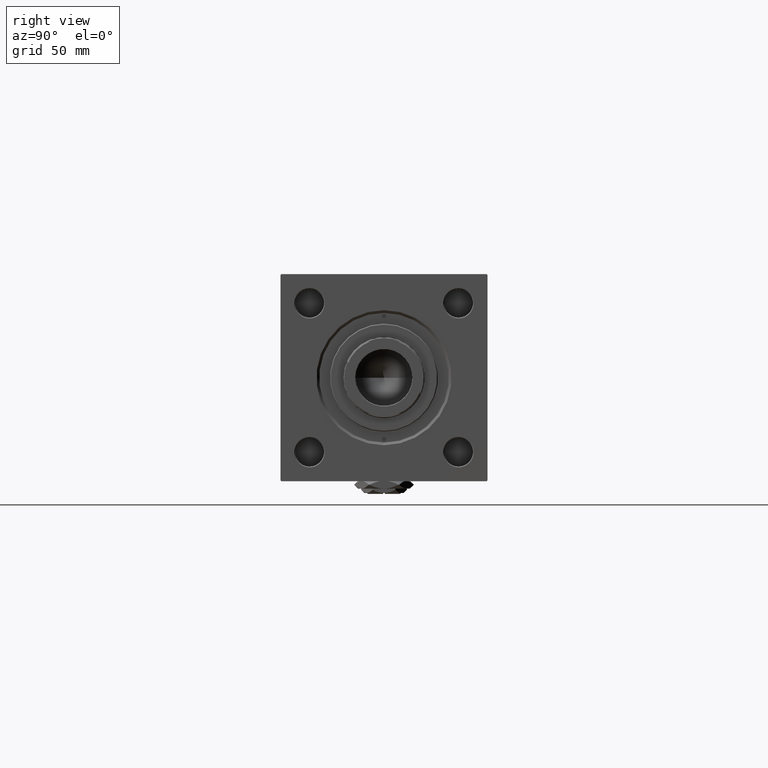
[diagram: clean part render]
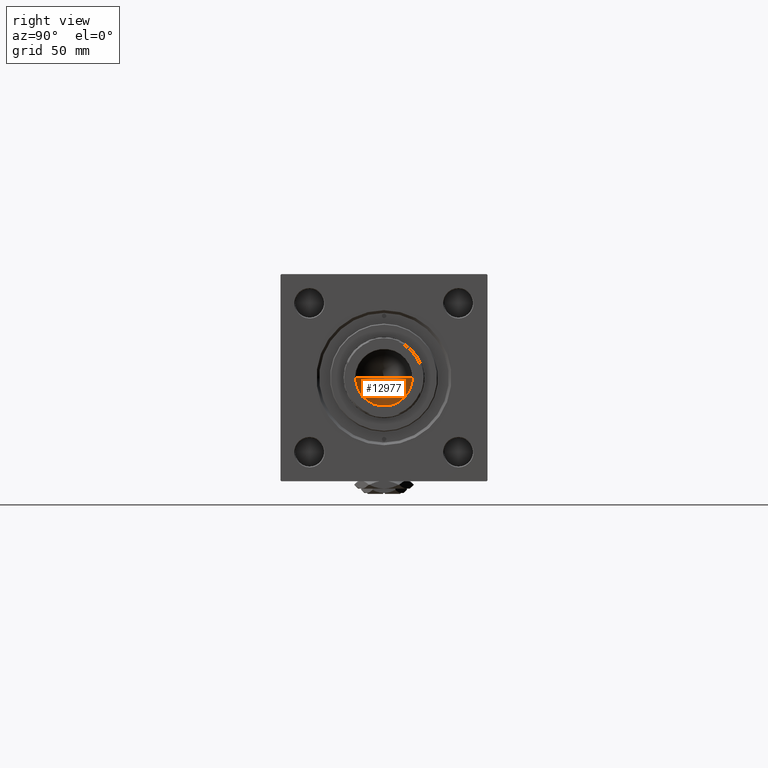
[diagram: same view with one face highlighted and labeled with its STEP entity id]
A machine part, right view. The second image highlights one B-rep face of the part: STEP entity #12977.
In plain terms, the highlighted conical surface has half-angle 59 deg.
Its self-contained STEP definition (entity closure, byte-faithful):
#4162 = CARTESIAN_POINT ( 'NONE',  ( 15.74999999999998934, 0.000000000000000000, 251.0000000000000000 ) ) ;
#4484 = CARTESIAN_POINT ( 'NONE',  ( -15.74999999999998934, 1.928818708657080161E-15, 251.0000000000000000 ) ) ;
#8616 = VERTEX_POINT ( 'NONE', #12252 ) ;
#11143 = EDGE_LOOP ( 'NONE', ( #13585, #38507, #45494 ) ) ;
#11863 = VERTEX_POINT ( 'NONE', #18242 ) ;
#12252 = CARTESIAN_POINT ( 'NONE',  ( 15.74999999999998934, 0.000000000000000000, 251.0000000000000000 ) ) ;
#12977 = ADVANCED_FACE ( 'NONE', ( #52028 ), #38042, .F. ) ;
#13585 = ORIENTED_EDGE ( 'NONE', *, *, #41399, .F. ) ;
#14576 = VECTOR ( 'NONE', #33585, 1000.000000000000000 ) ;
#18242 = CARTESIAN_POINT ( 'NONE',  ( -1.584115414415908206E-14, 0.000000000000000000, 241.5364452503158930 ) ) ;
#18614 = DIRECTION ( 'NONE',  ( 1.000000000000000000, 0.000000000000000000, 0.000000000000000000 ) ) ;
#19917 = CARTESIAN_POINT ( 'NONE',  ( 0.000000000000000000, 0.000000000000000000, 251.0000000000000000 ) ) ;
#26622 = DIRECTION ( 'NONE',  ( -0.000000000000000000, -0.000000000000000000, 1.000000000000000000 ) ) ;
#27503 = EDGE_CURVE ( 'NONE', #8616, #51253, #34939, .T. ) ;
#30218 = CARTESIAN_POINT ( 'NONE',  ( -15.74999999999998934, 1.928818708657080161E-15, 251.0000000000000000 ) ) ;
#31960 = DIRECTION ( 'NONE',  ( 1.000000000000000000, 0.000000000000000000, 0.000000000000000000 ) ) ;
#32320 = LINE ( 'NONE', #4484, #50691 ) ;
#33585 = DIRECTION ( 'NONE',  ( 0.8571673007021112234, 0.000000000000000000, 0.5150380749100560429 ) ) ;
#34939 = CIRCLE ( 'NONE', #40032, 15.74999999999998934 ) ;
#35480 = AXIS2_PLACEMENT_3D ( 'NONE', #19917, #51516, #31960 ) ;
#35846 = EDGE_CURVE ( 'NONE', #11863, #8616, #40809, .T. ) ;
#38042 = CONICAL_SURFACE ( 'NONE', #35480, 15.74999999999998934, 1.029744258676652313 ) ;
#38507 = ORIENTED_EDGE ( 'NONE', *, *, #35846, .T. ) ;
#40032 = AXIS2_PLACEMENT_3D ( 'NONE', #46166, #26622, #18614 ) ;
#40809 = LINE ( 'NONE', #4162, #14576 ) ;
#41399 = EDGE_CURVE ( 'NONE', #11863, #51253, #32320, .T. ) ;
#45494 = ORIENTED_EDGE ( 'NONE', *, *, #27503, .T. ) ;
#46166 = CARTESIAN_POINT ( 'NONE',  ( 0.000000000000000000, 0.000000000000000000, 251.0000000000000000 ) ) ;
#48363 = DIRECTION ( 'NONE',  ( -0.8571673007021112234, 1.049727191138617340E-16, 0.5150380749100560429 ) ) ;
#50691 = VECTOR ( 'NONE', #48363, 1000.000000000000000 ) ;
#51253 = VERTEX_POINT ( 'NONE', #30218 ) ;
#51516 = DIRECTION ( 'NONE',  ( -0.000000000000000000, -0.000000000000000000, 1.000000000000000000 ) ) ;
#52028 = FACE_OUTER_BOUND ( 'NONE', #11143, .T. ) ;